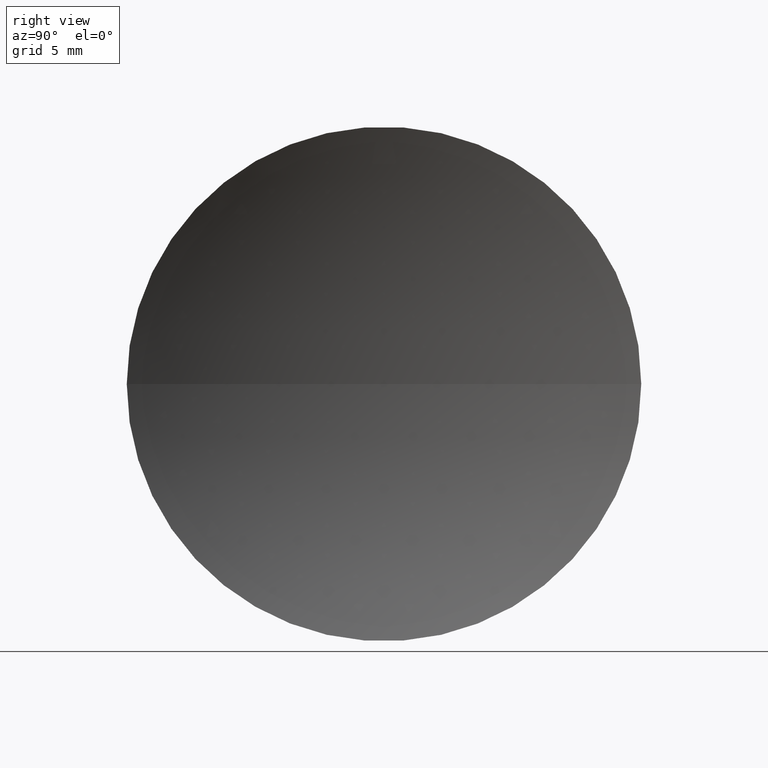
[diagram: clean part render]
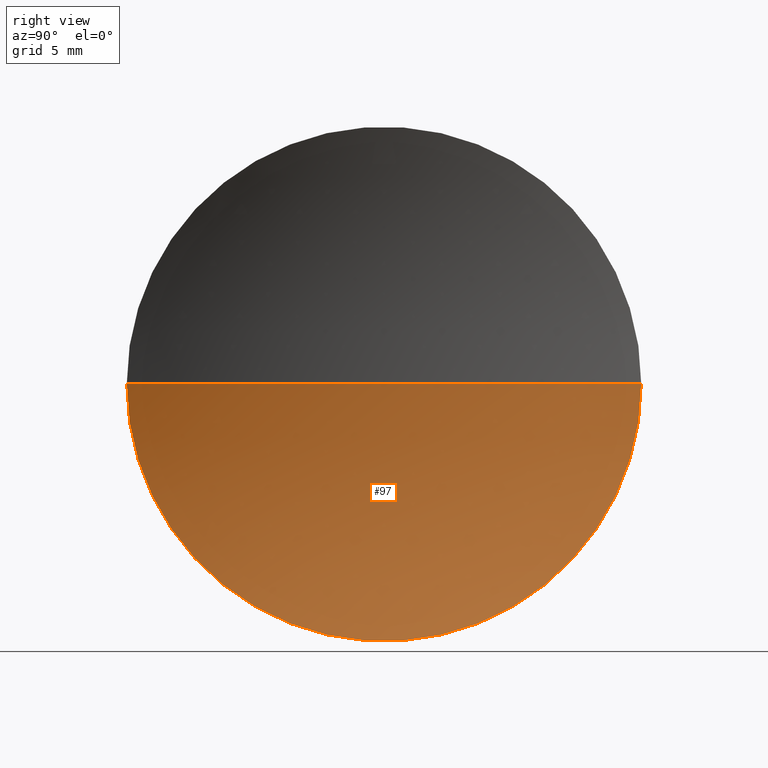
[diagram: same view with one face highlighted and labeled with its STEP entity id]
A machine part, right view. The second image highlights one B-rep face of the part: STEP entity #97.
In plain terms, the highlighted spherical surface has radius 51.64 mm.
Its self-contained STEP definition (entity closure, byte-faithful):
#3 = EDGE_LOOP ( 'NONE', ( #104, #63, #43 ) ) ;
#7 = CIRCLE ( 'NONE', #147, 51.63999999999999300 ) ;
#8 = DIRECTION ( 'NONE',  ( -1.000000000000000000, 6.488933942079480100E-016, -0.0000000000000000000 ) ) ;
#16 = DIRECTION ( 'NONE',  ( -1.000000000000000000, 0.0000000000000000000, 0.0000000000000000000 ) ) ;
#21 = CARTESIAN_POINT ( 'NONE',  ( 117.4754472601861600, 65.15745356914865700, 0.0000000000000000000 ) ) ;
#23 = DIRECTION ( 'NONE',  ( -5.374820994505987400E-016, -1.000000000000000000, 0.0000000000000000000 ) ) ;
#32 = CARTESIAN_POINT ( 'NONE',  ( 121.5056828236496500, 45.15745356914864300, 0.0000000000000000000 ) ) ;
#34 = EDGE_CURVE ( 'NONE', #86, #127, #49, .T. ) ;
#43 = ORIENTED_EDGE ( 'NONE', *, *, #34, .F. ) ;
#46 = SPHERICAL_SURFACE ( 'NONE', #155, 51.63999999999999300 ) ;
#49 = CIRCLE ( 'NONE', #61, 51.63999999999999300 ) ;
#51 = CARTESIAN_POINT ( 'NONE',  ( 121.5056828236496500, 65.15745182658618300, 0.0000000000000000000 ) ) ;
#52 = CARTESIAN_POINT ( 'NONE',  ( 121.5056828236496800, 85.15745182658619700, 2.449293384892351400E-015 ) ) ;
#59 = DIRECTION ( 'NONE',  ( 0.0000000000000000000, -1.000000000000000000, -1.224646799147353200E-016 ) ) ;
#60 = DIRECTION ( 'NONE',  ( -6.938893903907224400E-016, -1.000000000000000000, 0.0000000000000000000 ) ) ;
#61 = AXIS2_PLACEMENT_3D ( 'NONE', #95, #70, #16 ) ;
#63 = ORIENTED_EDGE ( 'NONE', *, *, #109, .T. ) ;
#64 = CARTESIAN_POINT ( 'NONE',  ( 169.1154472601861600, 65.15745356914862900, 0.0000000000000000000 ) ) ;
#70 = DIRECTION ( 'NONE',  ( 0.0000000000000000000, -0.0000000000000000000, -1.000000000000000000 ) ) ;
#83 = CIRCLE ( 'NONE', #85, 20.00000000000001100 ) ;
#84 = FACE_OUTER_BOUND ( 'NONE', #3, .T. ) ;
#85 = AXIS2_PLACEMENT_3D ( 'NONE', #51, #8, #60 ) ;
#86 = VERTEX_POINT ( 'NONE', #32 ) ;
#94 = EDGE_CURVE ( 'NONE', #115, #86, #83, .T. ) ;
#95 = CARTESIAN_POINT ( 'NONE',  ( 169.1154472601861600, 65.15745356914862900, 0.0000000000000000000 ) ) ;
#96 = CARTESIAN_POINT ( 'NONE',  ( 169.1154472601861600, 65.15745356914862900, 0.0000000000000000000 ) ) ;
#97 = ADVANCED_FACE ( 'NONE', ( #84 ), #46, .F. ) ;
#99 = DIRECTION ( 'NONE',  ( 0.0000000000000000000, 0.0000000000000000000, 1.000000000000000000 ) ) ;
#100 = DIRECTION ( 'NONE',  ( -7.946652182046252500E-032, -1.224646799147353200E-016, 1.000000000000000000 ) ) ;
#104 = ORIENTED_EDGE ( 'NONE', *, *, #94, .F. ) ;
#109 = EDGE_CURVE ( 'NONE', #115, #127, #7, .T. ) ;
#115 = VERTEX_POINT ( 'NONE', #52 ) ;
#127 = VERTEX_POINT ( 'NONE', #21 ) ;
#147 = AXIS2_PLACEMENT_3D ( 'NONE', #96, #100, #59 ) ;
#155 = AXIS2_PLACEMENT_3D ( 'NONE', #64, #99, #23 ) ;